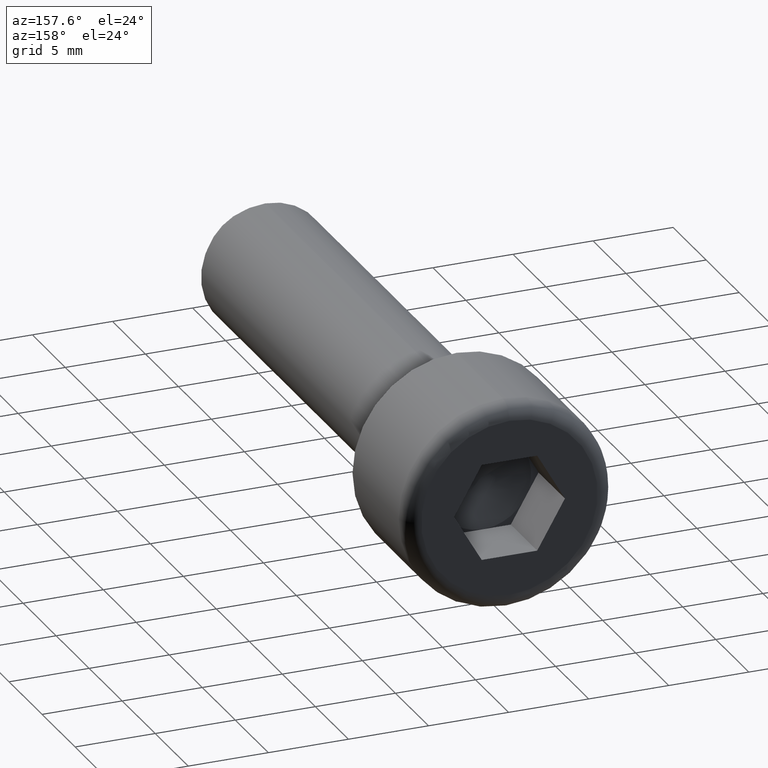
[diagram: clean part render]
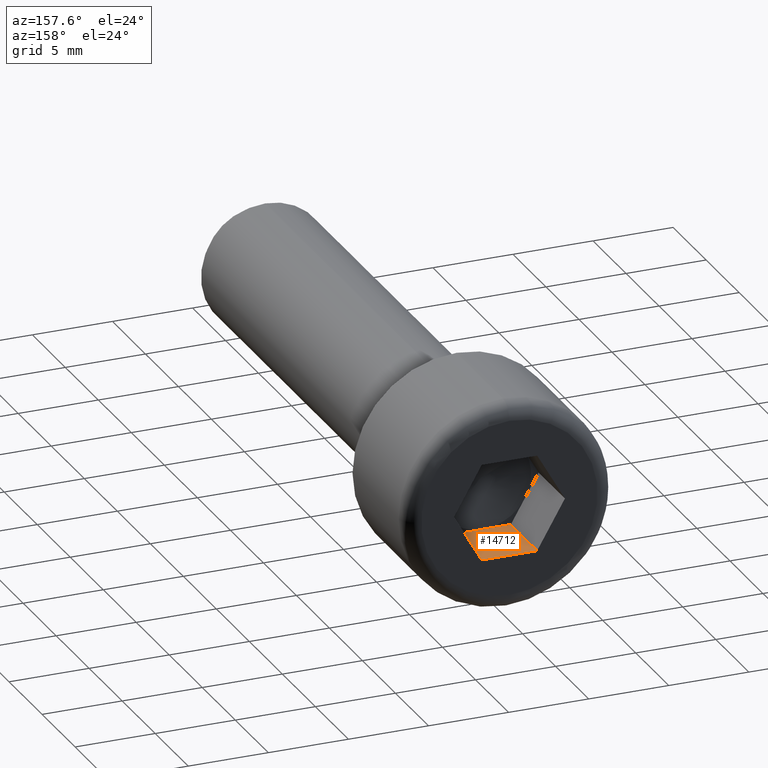
[diagram: same view with one face highlighted and labeled with its STEP entity id]
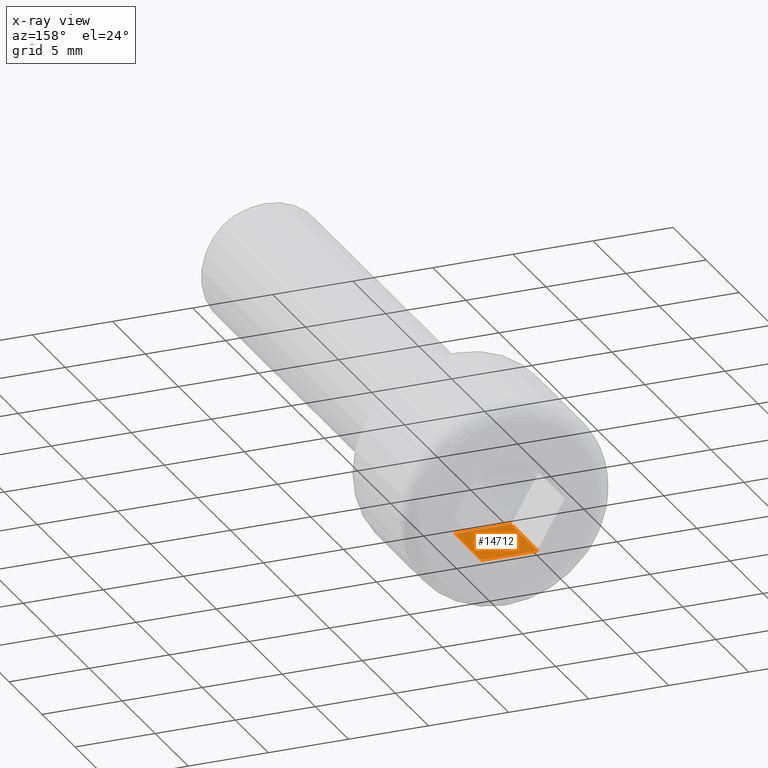
[diagram: x-ray of the same camera — body ghosted, the highlighted face saturated]
A machine part, auxiliary view. The second image highlights one B-rep face of the part: STEP entity #14712.
The next image is the same camera in x-ray: the body ghosted, the highlighted face saturated — about 0% of this face is hidden behind the body in this view.
In plain terms, the highlighted planar face has unit normal (-0, 0, -1).
Its self-contained STEP definition (entity closure, byte-faithful):
#230 = DIRECTION ( 'NONE',  ( -1.000000000000000000, 0.0000000000000000000, 1.251928832280966200E-016 ) ) ;
#463 = VERTEX_POINT ( 'NONE', #2386 ) ;
#652 = CARTESIAN_POINT ( 'NONE',  ( 1.732050807568876300, 8.000000000000000000, -3.000000000000000000 ) ) ;
#1090 = LINE ( 'NONE', #2181, #15477 ) ;
#1213 = VECTOR ( 'NONE', #6864, 1000.000000000000000 ) ;
#1688 = ORIENTED_EDGE ( 'NONE', *, *, #9478, .F. ) ;
#1728 = EDGE_CURVE ( 'NONE', #2112, #463, #13100, .T. ) ;
#1871 = PLANE ( 'NONE',  #15441 ) ;
#2112 = VERTEX_POINT ( 'NONE', #12448 ) ;
#2181 = CARTESIAN_POINT ( 'NONE',  ( 1.732050807568876300, 4.000000000000000000, -3.000000000000000000 ) ) ;
#2386 = CARTESIAN_POINT ( 'NONE',  ( -5.333242336302395600E-016, 3.999999999999998200, -3.000000000000000000 ) ) ;
#2423 = DIRECTION ( 'NONE',  ( -1.000000000000000000, 0.0000000000000000000, 1.251928832280966200E-016 ) ) ;
#2435 = DIRECTION ( 'NONE',  ( -1.000000000000000000, 0.0000000000000000000, 1.251928832280966200E-016 ) ) ;
#2573 = LINE ( 'NONE', #3723, #8165 ) ;
#2611 = ORIENTED_EDGE ( 'NONE', *, *, #1728, .F. ) ;
#2801 = LINE ( 'NONE', #9294, #1213 ) ;
#3100 = CARTESIAN_POINT ( 'NONE',  ( 1.732050807568876300, 4.000000000000000000, -3.000000000000000000 ) ) ;
#3723 = CARTESIAN_POINT ( 'NONE',  ( 1.732050807568876300, 4.000000000000000000, -3.000000000000000000 ) ) ;
#4279 = EDGE_LOOP ( 'NONE', ( #12527, #1688, #7717, #2611, #13098 ) ) ;
#4765 = CARTESIAN_POINT ( 'NONE',  ( -1.732050807568877400, 8.000000000000000000, -2.999999999999999600 ) ) ;
#5852 = EDGE_CURVE ( 'NONE', #14738, #8812, #14015, .T. ) ;
#6864 = DIRECTION ( 'NONE',  ( -0.0000000000000000000, 1.000000000000000000, -0.0000000000000000000 ) ) ;
#6919 = DIRECTION ( 'NONE',  ( -1.000000000000000000, 0.0000000000000000000, 1.251928832280966200E-016 ) ) ;
#7274 = FACE_OUTER_BOUND ( 'NONE', #4279, .T. ) ;
#7717 = ORIENTED_EDGE ( 'NONE', *, *, #10897, .F. ) ;
#8165 = VECTOR ( 'NONE', #2435, 1000.000000000000000 ) ;
#8283 = DIRECTION ( 'NONE',  ( -1.251928832280966200E-016, 0.0000000000000000000, -1.000000000000000000 ) ) ;
#8812 = VERTEX_POINT ( 'NONE', #4765 ) ;
#9294 = CARTESIAN_POINT ( 'NONE',  ( -1.732050807568877400, 4.000000000000000000, -2.999999999999999600 ) ) ;
#9478 = EDGE_CURVE ( 'NONE', #16013, #8812, #2801, .T. ) ;
#10106 = CARTESIAN_POINT ( 'NONE',  ( 1.732050807568876300, 8.000000000000000000, -3.000000000000000000 ) ) ;
#10897 = EDGE_CURVE ( 'NONE', #463, #16013, #2573, .T. ) ;
#11629 = VECTOR ( 'NONE', #2423, 1000.000000000000000 ) ;
#12290 = VECTOR ( 'NONE', #230, 1000.000000000000000 ) ;
#12448 = CARTESIAN_POINT ( 'NONE',  ( 1.732050807568876300, 4.000000000000000000, -3.000000000000000000 ) ) ;
#12527 = ORIENTED_EDGE ( 'NONE', *, *, #5852, .T. ) ;
#13098 = ORIENTED_EDGE ( 'NONE', *, *, #14413, .T. ) ;
#13100 = LINE ( 'NONE', #16540, #12290 ) ;
#13727 = CARTESIAN_POINT ( 'NONE',  ( -1.732050807568877400, 4.000000000000000000, -2.999999999999999600 ) ) ;
#14015 = LINE ( 'NONE', #10106, #11629 ) ;
#14413 = EDGE_CURVE ( 'NONE', #2112, #14738, #1090, .T. ) ;
#14712 = ADVANCED_FACE ( 'NONE', ( #7274 ), #1871, .F. ) ;
#14738 = VERTEX_POINT ( 'NONE', #652 ) ;
#15441 = AXIS2_PLACEMENT_3D ( 'NONE', #3100, #8283, #6919 ) ;
#15477 = VECTOR ( 'NONE', #16045, 1000.000000000000000 ) ;
#16013 = VERTEX_POINT ( 'NONE', #13727 ) ;
#16045 = DIRECTION ( 'NONE',  ( -0.0000000000000000000, 1.000000000000000000, -0.0000000000000000000 ) ) ;
#16540 = CARTESIAN_POINT ( 'NONE',  ( 1.732050807568876300, 4.000000000000000000, -3.000000000000000000 ) ) ;